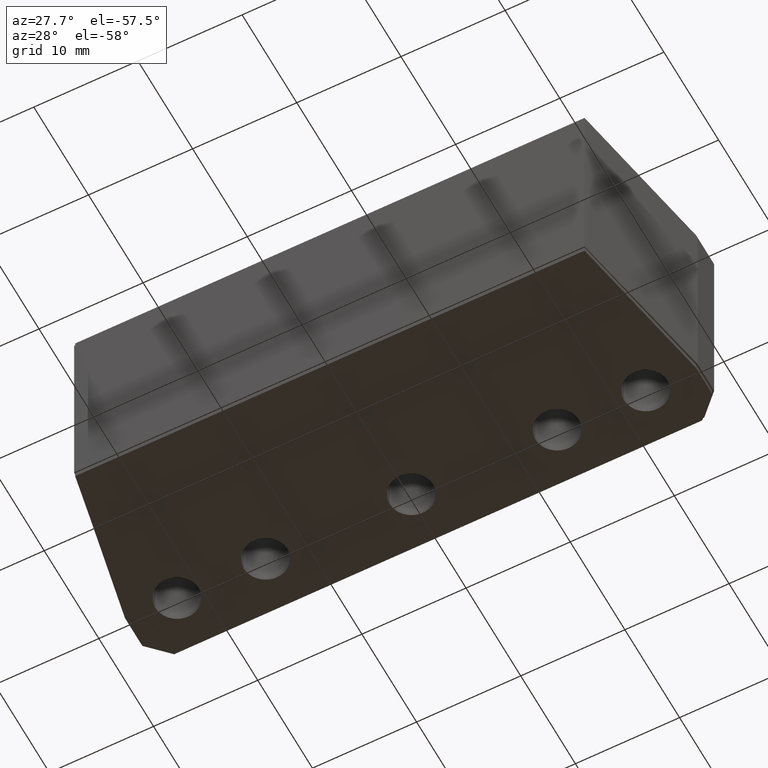
[diagram: clean part render]
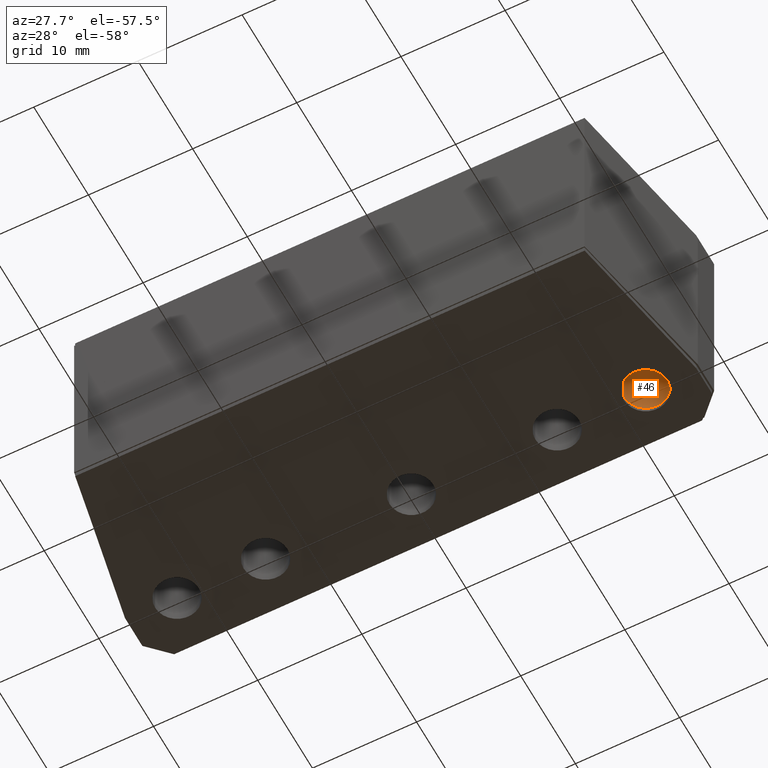
[diagram: same view with one face highlighted and labeled with its STEP entity id]
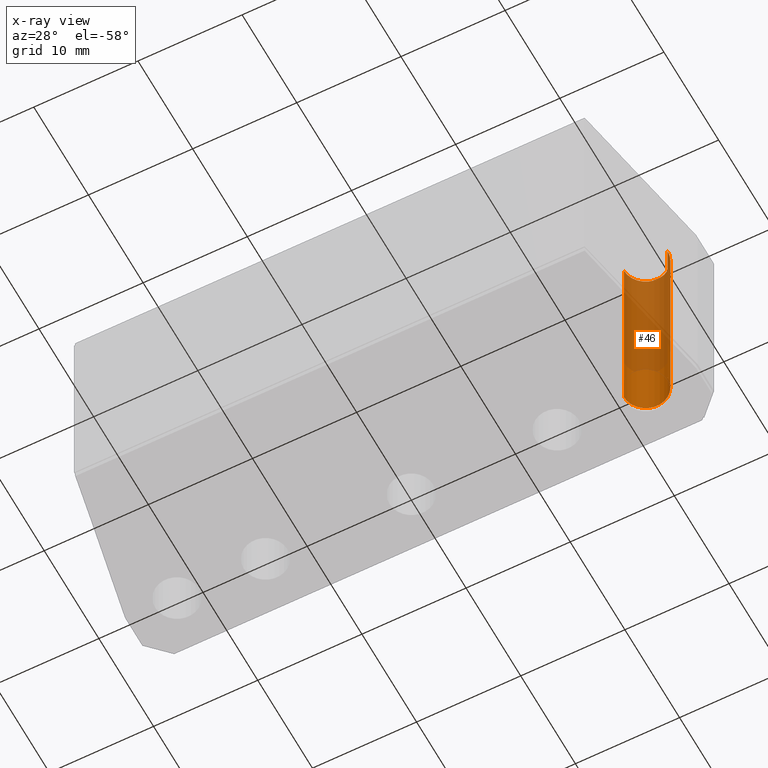
[diagram: x-ray of the same camera — body ghosted, the highlighted face saturated]
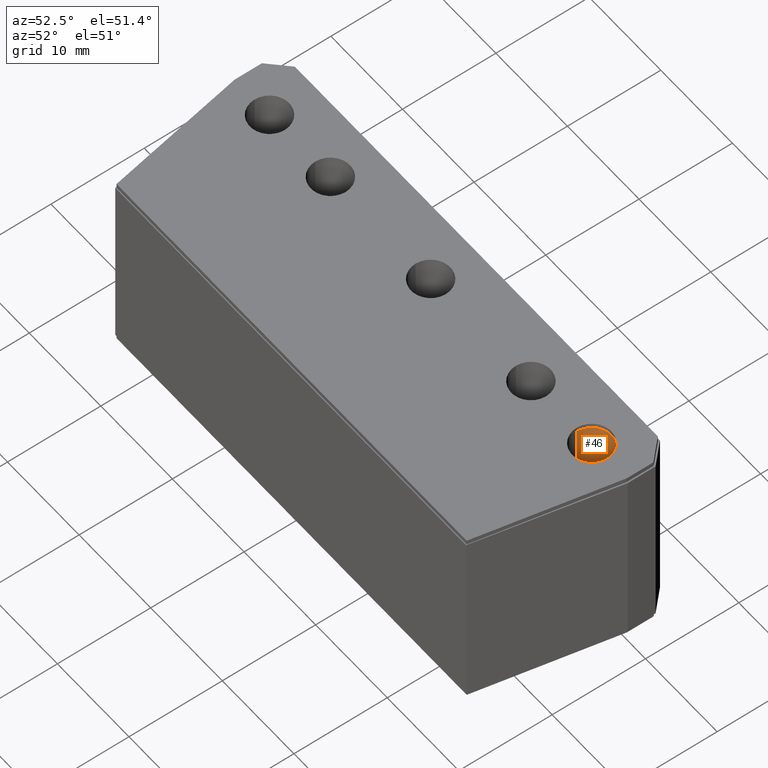
[diagram: same view with one face highlighted and labeled with its STEP entity id]
A machine part, auxiliary view. The second image highlights one B-rep face of the part: STEP entity #46.
The next image is the same camera in x-ray: the body ghosted, the highlighted face saturated — about 72% of this face is hidden behind the body in this view.
A second angle (auxiliary view) of the same face is appended — the face is thin or edge-on in the first view.
In plain terms, the highlighted cylindrical surface (edge-blend (fillet) strip) has radius 2.1 mm, axis along (0, 0, 1).
Its self-contained STEP definition (entity closure, byte-faithful):
#46 = ADVANCED_FACE ( 'NONE', ( #2130 ), #2131, .F. ) ;
#92 = EDGE_CURVE ( 'NONE', #2803, #2804, #578, .T. ) ;
#103 = EDGE_CURVE ( 'NONE', #2810, #2803, #1882, .T. ) ;
#170 = EDGE_CURVE ( 'NONE', #2809, #2804, #1673, .T. ) ;
#343 = AXIS2_PLACEMENT_3D ( 'NONE', #1903, #1902, #1901 ) ;
#578 = CIRCLE ( 'NONE', #343, 2.100000000000001000 ) ;
#611 = VECTOR ( 'NONE', #1868, 1000.000000000000000 ) ;
#627 = AXIS2_PLACEMENT_3D ( 'NONE', #2129, #2140, #2127 ) ;
#711 = AXIS2_PLACEMENT_3D ( 'NONE', #1116, #1115, #1114 ) ;
#749 = VECTOR ( 'NONE', #1669, 1000.000000000000000 ) ;
#760 = CIRCLE ( 'NONE', #711, 2.100000000000001000 ) ;
#827 = EDGE_LOOP ( 'NONE', ( #3274, #3275, #3276, #3277 ) ) ;
#1114 = DIRECTION ( 'NONE',  ( -1.000000000000000000, 0.0000000000000000000, 0.0000000000000000000 ) ) ;
#1115 = DIRECTION ( 'NONE',  ( 0.0000000000000000000, 0.0000000000000000000, -1.000000000000000000 ) ) ;
#1116 = CARTESIAN_POINT ( 'NONE',  ( 22.49999999999999600, 0.0000000000000000000, -20.00000000000000000 ) ) ;
#1361 = EDGE_CURVE ( 'NONE', #2809, #2810, #760, .T. ) ;
#1669 = DIRECTION ( 'NONE',  ( -0.0000000000000000000, -0.0000000000000000000, 1.000000000000000000 ) ) ;
#1673 = LINE ( 'NONE', #1677, #749 ) ;
#1677 = CARTESIAN_POINT ( 'NONE',  ( 20.39999999999999500, 2.571758278209442000E-016, -21.00000000000000000 ) ) ;
#1868 = DIRECTION ( 'NONE',  ( -0.0000000000000000000, -0.0000000000000000000, 1.000000000000000000 ) ) ;
#1877 = CARTESIAN_POINT ( 'NONE',  ( 24.59999999999999800, 0.0000000000000000000, -21.00000000000000000 ) ) ;
#1882 = LINE ( 'NONE', #1877, #611 ) ;
#1901 = DIRECTION ( 'NONE',  ( 1.000000000000000000, 0.0000000000000000000, 0.0000000000000000000 ) ) ;
#1902 = DIRECTION ( 'NONE',  ( 0.0000000000000000000, 0.0000000000000000000, 1.000000000000000000 ) ) ;
#1903 = CARTESIAN_POINT ( 'NONE',  ( 22.49999999999999600, 0.0000000000000000000, 0.0000000000000000000 ) ) ;
#2127 = DIRECTION ( 'NONE',  ( 1.000000000000000000, 0.0000000000000000000, 0.0000000000000000000 ) ) ;
#2129 = CARTESIAN_POINT ( 'NONE',  ( 22.49999999999999600, 0.0000000000000000000, -21.00000000000000000 ) ) ;
#2130 = FACE_OUTER_BOUND ( 'NONE', #827, .T. ) ;
#2131 = CYLINDRICAL_SURFACE ( 'NONE', #627, 2.100000000000001000 ) ;
#2140 = DIRECTION ( 'NONE',  ( -0.0000000000000000000, -0.0000000000000000000, 1.000000000000000000 ) ) ;
#2593 = CARTESIAN_POINT ( 'NONE',  ( 24.59999999999999800, 0.0000000000000000000, -20.00000000000000000 ) ) ;
#2594 = CARTESIAN_POINT ( 'NONE',  ( 20.39999999999999500, 2.571758278209441500E-016, -20.00000000000000000 ) ) ;
#2599 = CARTESIAN_POINT ( 'NONE',  ( 20.39999999999999500, 2.571758278209441500E-016, 0.0000000000000000000 ) ) ;
#2600 = CARTESIAN_POINT ( 'NONE',  ( 24.59999999999999800, 0.0000000000000000000, 0.0000000000000000000 ) ) ;
#2803 = VERTEX_POINT ( 'NONE', #2600 ) ;
#2804 = VERTEX_POINT ( 'NONE', #2599 ) ;
#2809 = VERTEX_POINT ( 'NONE', #2594 ) ;
#2810 = VERTEX_POINT ( 'NONE', #2593 ) ;
#3274 = ORIENTED_EDGE ( 'NONE', *, *, #170, .F. ) ;
#3275 = ORIENTED_EDGE ( 'NONE', *, *, #1361, .T. ) ;
#3276 = ORIENTED_EDGE ( 'NONE', *, *, #103, .T. ) ;
#3277 = ORIENTED_EDGE ( 'NONE', *, *, #92, .T. ) ;